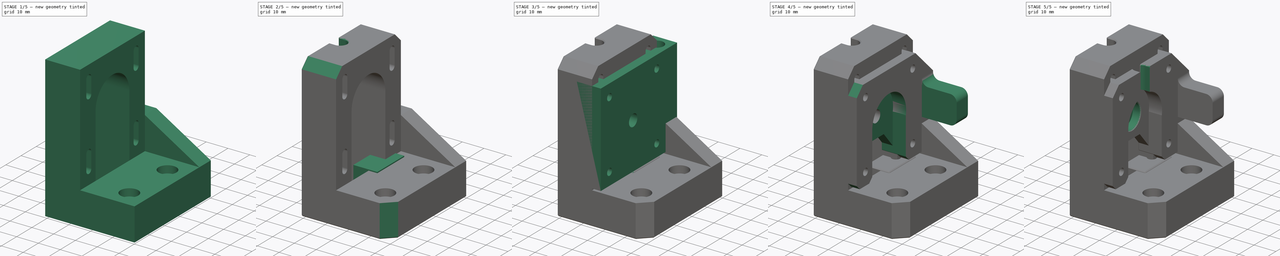
[diagram: build sequence overview — one tinted view per stage of 5, left to right]
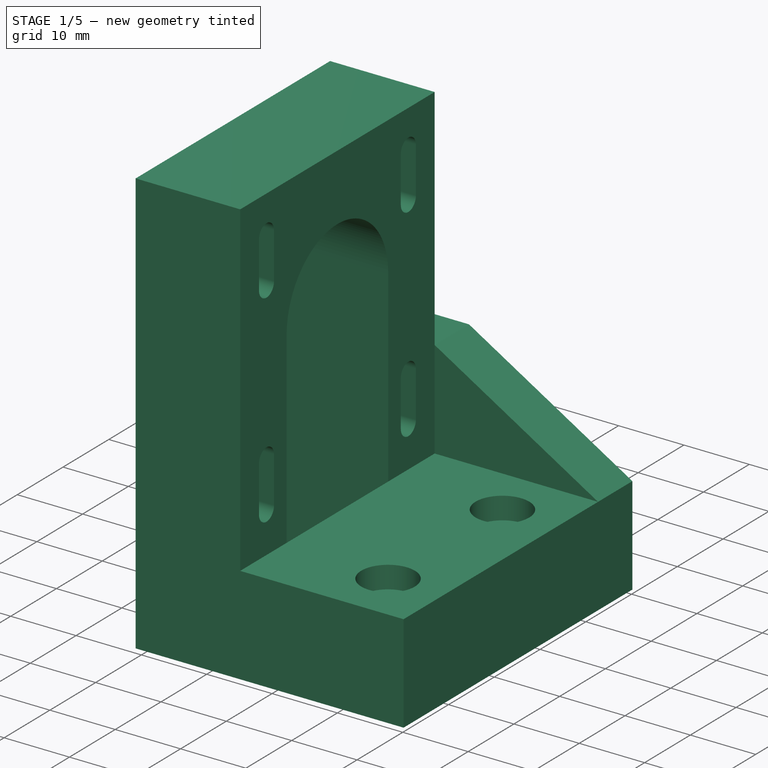
[diagram: stage 1 of 5 — iso view after this stage's code; geometry added in this stage tinted green]
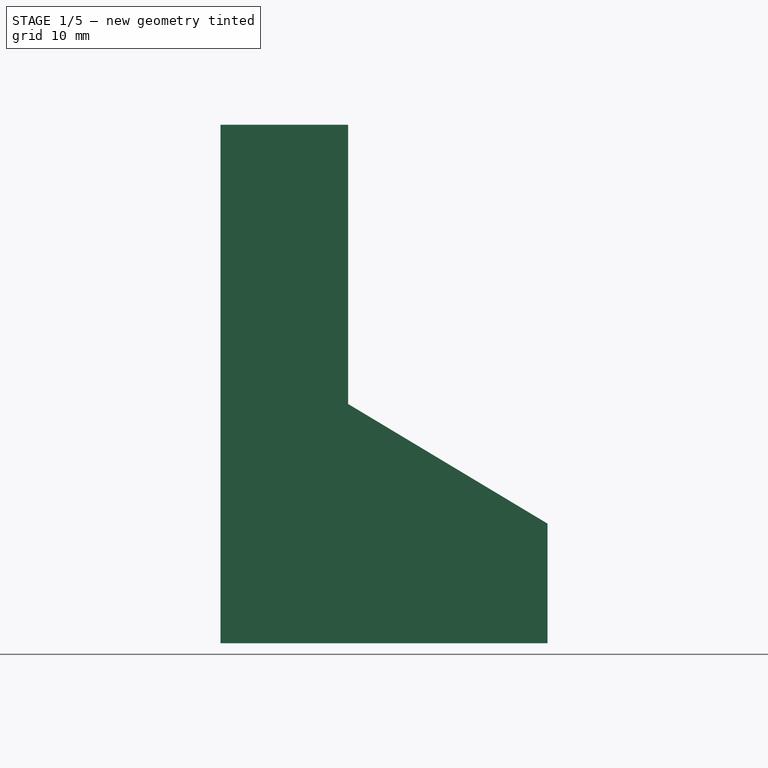
[diagram: stage 1 of 5 — front view after this stage's code; geometry added in this stage tinted green]
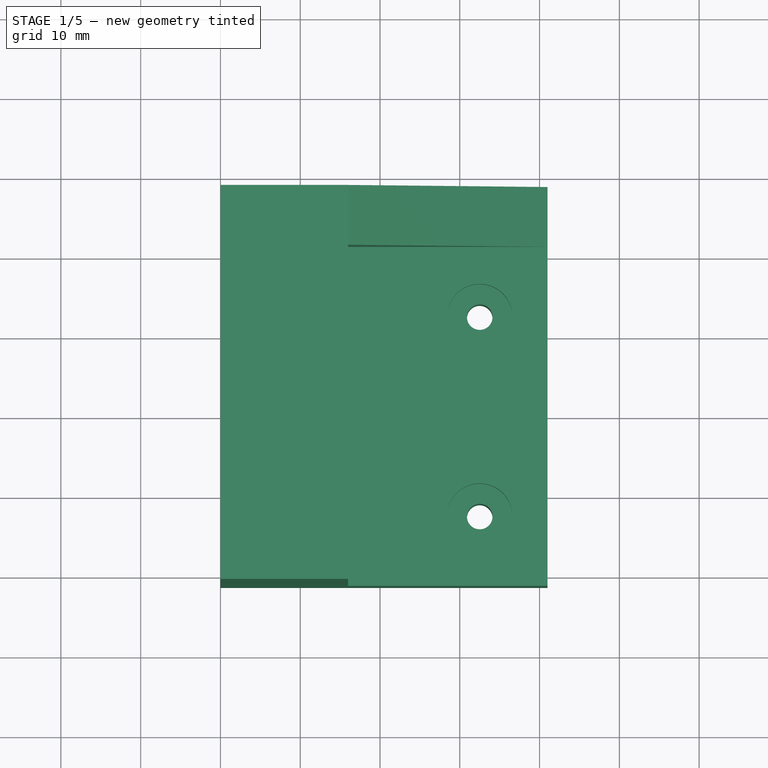
[diagram: stage 1 of 5 — top view after this stage's code; geometry added in this stage tinted green]
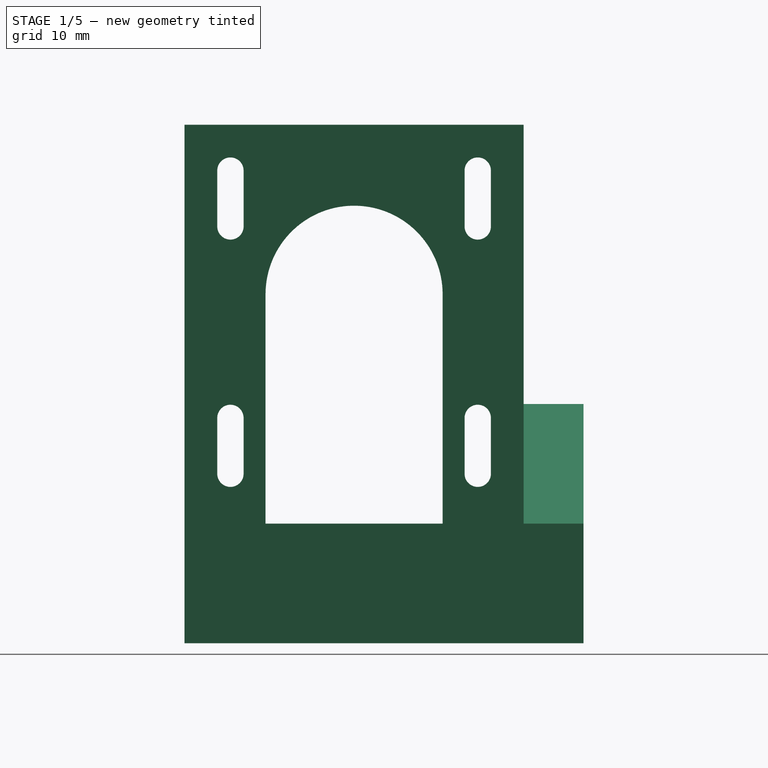
[diagram: stage 1 of 5 — right view after this stage's code; geometry added in this stage tinted green]
FCSTD DOCUMENT  (FreeCAD 0.19R24366 (Git))
Label: y-motor-mount
License: All rights reserved
LicenseURL: http://en.wikipedia.org/wiki/All_rights_reserved
objects: Sketcher::SketchObject×23, PartDesign::Pocket×16, PartDesign::Chamfer×10, PartDesign::Pad×6, PartDesign::Body×3, PartDesign::Hole×1, PartDesign::Fillet×1, Part::Feature×1
note: 95 computed .brp shape members not serialized (recipe doc carries the construction recipe); baked Part::Feature solids carry a one-line shape summary decoded from their .brp

FEATURE [Sketcher::SketchObject] Sketch
  FullyConstrained = true
  MapMode = 5
  Support = -> [XY_Plane]
  sketch-geometry (4):
    g0: LineSegment StartX=-20 StartY=28.75 StartZ=0 EndX=-4 EndY=28.75 EndZ=0
    g1: LineSegment StartX=-4 StartY=28.75 StartZ=0 EndX=-4 EndY=-21.25 EndZ=0
    g2: LineSegment StartX=-4 StartY=-21.25 StartZ=0 EndX=-20 EndY=-21.25 EndZ=0
    g3: LineSegment StartX=-20 StartY=-21.25 StartZ=0 EndX=-20 EndY=28.75 EndZ=0
  constraints (12):
    c: Coincident(g0,g1)
    c: Coincident(g1,g2)
    c: Coincident(g2,g3)
    c: Coincident(g3,g0)
    c: Horizontal(g0)
    c: Horizontal(g2)
    c: Vertical(g1)
    c: Vertical(g3)
    c: DistanceY(g3,g3) = 50
    c: DistanceY(g2,g-1) = 21.25
    c: DistanceX(g0,g-1) = 20
    c: DistanceX(g0,g-1) = 4
FEATURE [PartDesign::Pad] Pad
  Direction = (1,1,1)
  Length = 65
  Length2 = 100
  Profile = -> Sketch
  Type = 0
FEATURE [Sketcher::SketchObject] Sketch001
  ExternalGeometry = -> [Pad]
  FullyConstrained = true
  MapMode = 5
  Placement = pos=(-20,0,0) rot=(0.57735,-0.57735,-0.57735;2.0944rad)
  Support = -> [Pad]
  sketch-geometry (20):
    g0: ArcOfCircle CenterX=0 CenterY=43.75 CenterZ=0 NormalX=0 NormalY=0 NormalZ=1 AngleXU=0 Radius=11.1 StartAngle=1e-16 EndAngle=3.14159
    g1: ArcOfCircle CenterX=2e-16 CenterY=36.75 CenterZ=0 NormalX=0 NormalY=0 NormalZ=1 AngleXU=0 Radius=11.1 StartAngle=3.14159 EndAngle=6.28319
    g2: LineSegment StartX=-11.1 StartY=43.75 StartZ=0 EndX=-11.1 EndY=36.75 EndZ=0
    g3: LineSegment StartX=11.1 StartY=43.75 StartZ=0 EndX=11.1 EndY=36.75 EndZ=0
    g4: ArcOfCircle CenterX=-15.5 CenterY=59.25 CenterZ=0 NormalX=0 NormalY=0 NormalZ=1 AngleXU=0 Radius=1.65 StartAngle=1.7e-15 EndAngle=3.14159
    g5: ArcOfCircle CenterX=-15.5 CenterY=52.25 CenterZ=0 NormalX=0 NormalY=0 NormalZ=1 AngleXU=0 Radius=1.65 StartAngle=3.14159 EndAngle=6.28319
    g6: LineSegment StartX=-17.15 StartY=59.25 StartZ=0 EndX=-17.15 EndY=52.25 EndZ=0
    g7: LineSegment StartX=-13.85 StartY=59.25 StartZ=0 EndX=-13.85 EndY=52.25 EndZ=0
    g8: ArcOfCircle CenterX=15.5 CenterY=59.25 CenterZ=0 NormalX=0 NormalY=0 NormalZ=1 AngleXU=0 Radius=1.65 StartAngle=1.8e-15 EndAngle=3.14159
    g9: ArcOfCircle CenterX=15.5 CenterY=52.25 CenterZ=0 NormalX=0 NormalY=0 NormalZ=1 AngleXU=0 Radius=1.65 StartAngle=3.14159 EndAngle=6.28319
    g10: LineSegment StartX=13.85 StartY=59.25 StartZ=0 EndX=13.85 EndY=52.25 EndZ=0
    g11: LineSegment StartX=17.15 StartY=59.25 StartZ=0 EndX=17.15 EndY=52.25 EndZ=0
    g12: ArcOfCircle CenterX=-15.5 CenterY=28.25 CenterZ=0 NormalX=0 NormalY=0 NormalZ=1 AngleXU=0 Radius=1.65 StartAngle=4e-16 EndAngle=3.14159
    g13: ArcOfCircle CenterX=-15.5 CenterY=21.25 CenterZ=0 NormalX=0 NormalY=0 NormalZ=1 AngleXU=0 Radius=1.65 StartAngle=3.14159 EndAngle=6.28319
    g14: LineSegment StartX=-17.15 StartY=28.25 StartZ=0 EndX=-17.15 EndY=21.25 EndZ=0
    g15: LineSegment StartX=-13.85 StartY=28.25 StartZ=0 EndX=-13.85 EndY=21.25 EndZ=0
    g16: ArcOfCircle CenterX=15.5 CenterY=28.25 CenterZ=0 NormalX=0 NormalY=0 NormalZ=1 AngleXU=0 Radius=1.65 StartAngle=1e-15 EndAngle=3.14159
    g17: ArcOfCircle CenterX=15.5 CenterY=21.25 CenterZ=0 NormalX=0 NormalY=0 NormalZ=1 AngleXU=0 Radius=1.65 StartAngle=3.14159 EndAngle=6.28319
    g18: LineSegment StartX=13.85 StartY=28.25 StartZ=0 EndX=13.85 EndY=21.25 EndZ=0
    g19: LineSegment StartX=17.15 StartY=28.25 StartZ=0 EndX=17.15 EndY=21.25 EndZ=0
  constraints (50):
    c: Tangent(g0,g3) = 1.5708
    c: Tangent(g0,g2) = -1.5708
    c: Tangent(g2,g1) = -1.5708
    c: Tangent(g3,g1) = 1.5708
    c: Vertical(g2)
    c: Equal(g0,g1)
    c: PointOnObject(g0,g-2)
    c: Tangent(g4,g7) = 1.5708
    c: Tangent(g4,g6) = -1.5708
    c: Tangent(g6,g5) = -1.5708
    c: Tangent(g7,g5) = 1.5708
    c: Vertical(g6)
    c: Equal(g4,g5)
    c: Tangent(g8,g11) = 1.5708
    c: Tangent(g8,g10) = -1.5708
    c: Tangent(g10,g9) = -1.5708
    c: Tangent(g11,g9) = 1.5708
    c: Vertical(g10)
    c: Equal(g8,g9)
    c: Tangent(g12,g15) = 1.5708
    c: Tangent(g12,g14) = -1.5708
    c: Tangent(g14,g13) = -1.5708
    c: Tangent(g15,g13) = 1.5708
    c: Vertical(g14)
    c: Equal(g12,g13)
    c: Tangent(g16,g19) = 1.5708
    c: Tangent(g16,g18) = -1.5708
    c: Tangent(g18,g17) = -1.5708
    c: Tangent(g19,g17) = 1.5708
    c: Vertical(g18)
    c: Equal(g16,g17)
    c: Horizontal(g12,g16)
    c: Horizontal(g4,g8)
    c: Vertical(g5,g13)
    c: Vertical(g9,g17)
    c: Equal(g4,g12)
    c: Equal(g12,g16)
    c: Equal(g16,g8)
    c: DistanceY(g0,g-3) = 21.25
    c: Radius(g0) = 11.1
    c: DistanceX(g4,g0) = 15.5
    c: DistanceY(g0,g4) = 15.5
    c: Horizontal(g17,g13)
    c: Horizontal(g9,g5)
    c: DistanceY(g12,g0) = 15.5
    c: Radius(g4) = 1.65
    c: DistanceX(g0,g8) = 15.5
    c: DistanceY(g1,g0) = 7
    c: DistanceY(g5,g4) = 7
    c: DistanceY(g13,g12) = 7
FEATURE [PartDesign::Pocket] Pocket
  BaseFeature = -> Pad
  Length = 5
  Length2 = 100
  Profile = -> Sketch001
  Type = 1
FEATURE [Sketcher::SketchObject] Sketch002
  ExternalGeometry = -> [Pocket]
  FullyConstrained = true
  MapMode = 5
  Placement = pos=(-4,0,0) rot=(0.57735,0.57735,0.57735;2.0944rad)
  Support = -> [Pocket]
  sketch-geometry (4):
    g0: LineSegment StartX=-21.25 StartY=0 StartZ=0 EndX=28.75 EndY=0 EndZ=0
    g1: LineSegment StartX=28.75 StartY=0 StartZ=0 EndX=28.75 EndY=15 EndZ=0
    g2: LineSegment StartX=28.75 StartY=15 StartZ=0 EndX=-21.25 EndY=15 EndZ=0
    g3: LineSegment StartX=-21.25 StartY=15 StartZ=0 EndX=-21.25 EndY=0 EndZ=0
  constraints (11):
    c: Coincident(g0,g1)
    c: Coincident(g1,g2)
    c: Coincident(g2,g3)
    c: Coincident(g3,g0)
    c: Horizontal(g0)
    c: Horizontal(g2)
    c: Vertical(g1)
    c: Vertical(g3)
    c: Coincident(g0,g-3)
    c: Vertical(g1,g-3)
    c: DistanceY(g3,g3) = 15
FEATURE [PartDesign::Pad] Pad001
  BaseFeature = -> Pocket
  Direction = (1,1,1)
  Length = 25
  Length2 = 100
  Profile = -> Sketch002
  Type = 0
FEATURE [Sketcher::SketchObject] Sketch011
  ExternalGeometry = -> [Pad001]
  FullyConstrained = true
  MapMode = 5
  Placement = pos=(-20,0,0) rot=(0.57735,-0.57735,-0.57735;2.0944rad)
  Support = -> [Pad001]
  sketch-geometry (4):
    g0: LineSegment StartX=-11.1 StartY=36.75 StartZ=0 EndX=-11.1 EndY=0 EndZ=0
    g1: LineSegment StartX=-11.1 StartY=0 StartZ=0 EndX=11.1 EndY=0 EndZ=0
    g2: LineSegment StartX=11.1 StartY=0 StartZ=0 EndX=11.1 EndY=36.75 EndZ=0
    g3: ArcOfCircle CenterX=2e-16 CenterY=36.75 CenterZ=0 NormalX=0 NormalY=0 NormalZ=1 AngleXU=0 Radius=11.1 StartAngle=3.14159 EndAngle=6.28319
  constraints (11):
    c: PointOnObject(g0,g-1)
    c: Vertical(g0)
    c: Coincident(g0,g1)
    c: PointOnObject(g1,g-1)
    c: Coincident(g1,g2)
    c: Vertical(g2)
    c: Coincident(g2,g-3)
    c: Coincident(g0,g-3)
    c: Coincident(g3,g-3)
    c: Coincident(g3,g0)
    c: Coincident(g3,g2)
FEATURE [PartDesign::Pocket] Pocket001
  BaseFeature = -> Pad001
  Length = 16
  Length2 = 100
  Profile = -> Sketch011
  Type = 0
FEATURE [Sketcher::SketchObject] Sketch012
  FullyConstrained = false
  MapMode = 5
  Placement = pos=(0,0,15) rot=(0,0,1;0rad)
  Support = -> [Pocket001]
  sketch-geometry (2):
    g0: Circle CenterX=12.5 CenterY=12.5 CenterZ=0 NormalX=0 NormalY=0 NormalZ=1 AngleXU=0 Radius=1.87296
    g1: Circle CenterX=12.5 CenterY=-12.5 CenterZ=0 NormalX=0 NormalY=0 NormalZ=1 AngleXU=0 Radius=1.87296
  constraints (5):
    c: Vertical(g1,g0)
    c: DistanceY(g-1,g0) = 12.5
    c: DistanceY(g1,g-1) = 12.5
    c: DistanceX(g-1,g0) = 12.5
    c: Equal(g0,g1)
FEATURE [PartDesign::Hole] Hole
  BaseFeature = -> Pocket001
  Depth = 25
  DepthType = 0
  Diameter = 3.2
  DrillForDepth = false
  DrillPoint = 1
  DrillPointAngle = 118
  HoleCutCountersinkAngle = 90
  HoleCutCustomValues = false
  HoleCutDepth = 3.4
  HoleCutDiameter = 8.2
  HoleCutType = 1
  ModelActualThread = false
  Profile = -> Sketch012
  Tapered = false
  TaperedAngle = 90
  ThreadAngle = 0
  ThreadClass = 0
  ThreadCutOffInner = 0
  ThreadCutOffOuter = 0
  ThreadDirection = 0
  ThreadFit = 1
  ThreadPitch = 0
  ThreadSize = 9
  ThreadType = 1
  Threaded = false
FEATURE [Sketcher::SketchObject] Sketch013
  ExternalGeometry = -> [Hole]
  FullyConstrained = true
  MapMode = 5
  Placement = pos=(-4,0,0) rot=(0.57735,0.57735,0.57735;2.0944rad)
  Support = -> [Hole]
  sketch-geometry (4):
    g0: LineSegment StartX=21.25 StartY=65 StartZ=0 EndX=28.75 EndY=65 EndZ=0
    g1: LineSegment StartX=28.75 StartY=65 StartZ=0 EndX=28.75 EndY=15 EndZ=0
    g2: LineSegment StartX=28.75 StartY=15 StartZ=0 EndX=21.25 EndY=15 EndZ=0
    g3: LineSegment StartX=21.25 StartY=15 StartZ=0 EndX=21.25 EndY=65 EndZ=0
  constraints (11):
    c: Coincident(g0,g1)
    c: Coincident(g1,g2)
    c: Coincident(g2,g3)
    c: Coincident(g3,g0)
    c: Horizontal(g0)
    c: Horizontal(g2)
    c: Vertical(g1)
    c: Vertical(g3)
    c: PointOnObject(g0,g-3)
    c: Coincident(g1,g-5)
    c: DistanceX(g-1,g0) = 21.25
FEATURE [PartDesign::Pocket] Pocket002
  BaseFeature = -> Hole
  Length = 5
  Length2 = 100
  Profile = -> Sketch013
  Type = 1
FEATURE [Sketcher::SketchObject] Sketch014
  ExternalGeometry = -> [Pocket002]
  FullyConstrained = true
  MapMode = 5
  Placement = pos=(0,28.75,0) rot=(0,0.707107,0.707107;3.14159rad)
  Support = -> [Pocket002]
  sketch-geometry (4):
    g0: LineSegment StartX=-21 StartY=15 StartZ=0 EndX=4 EndY=30 EndZ=0
    g1: LineSegment StartX=4 StartY=30 StartZ=0 EndX=20 EndY=30 EndZ=0
    g2: LineSegment StartX=20 StartY=15 StartZ=0 EndX=20 EndY=30 EndZ=0
    g3: LineSegment StartX=20 StartY=15 StartZ=0 EndX=-21 EndY=15 EndZ=0
  constraints (10):
    c: Coincident(g-4,g0)
    c: PointOnObject(g0,g-6)
    c: Coincident(g1,g0)
    c: PointOnObject(g1,g-7)
    c: Horizontal(g1)
    c: Coincident(g2,g-7)
    c: Coincident(g2,g1)
    c: Coincident(g3,g2)
    c: Coincident(g3,g0)
    c: DistanceY(g2,g2) = 15
FEATURE [PartDesign::Pad] Pad006
  BaseFeature = -> Pocket002
  Direction = (1,1,1)
  Length = 10
  Length2 = 100
  Profile = -> Sketch014
  Refine = true
  Reversed = true
  Type = 3
  UpToFace = -> Pocket002 [Face10]
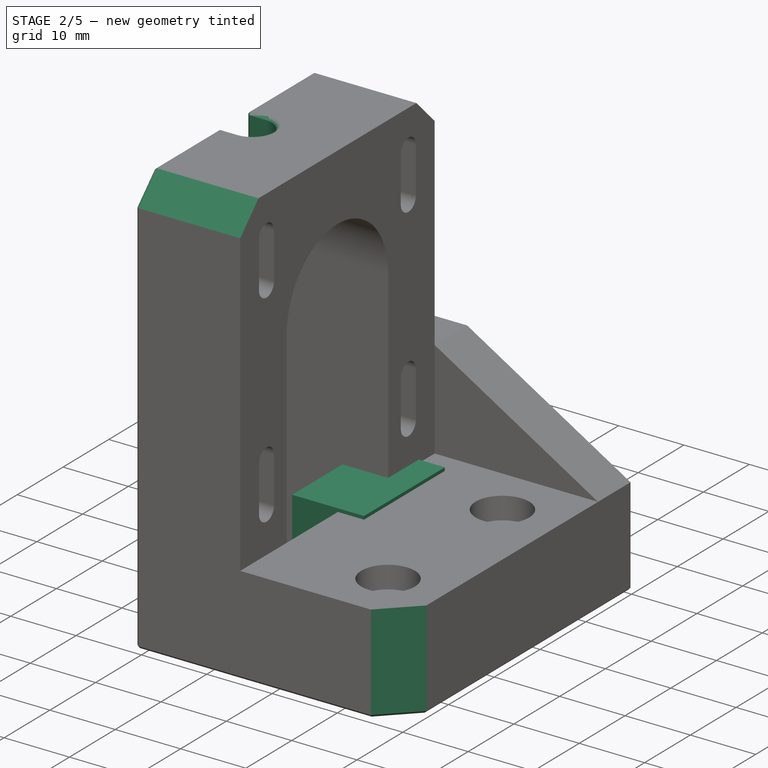
[diagram: stage 2 of 5 — iso view after this stage's code; geometry added in this stage tinted green]
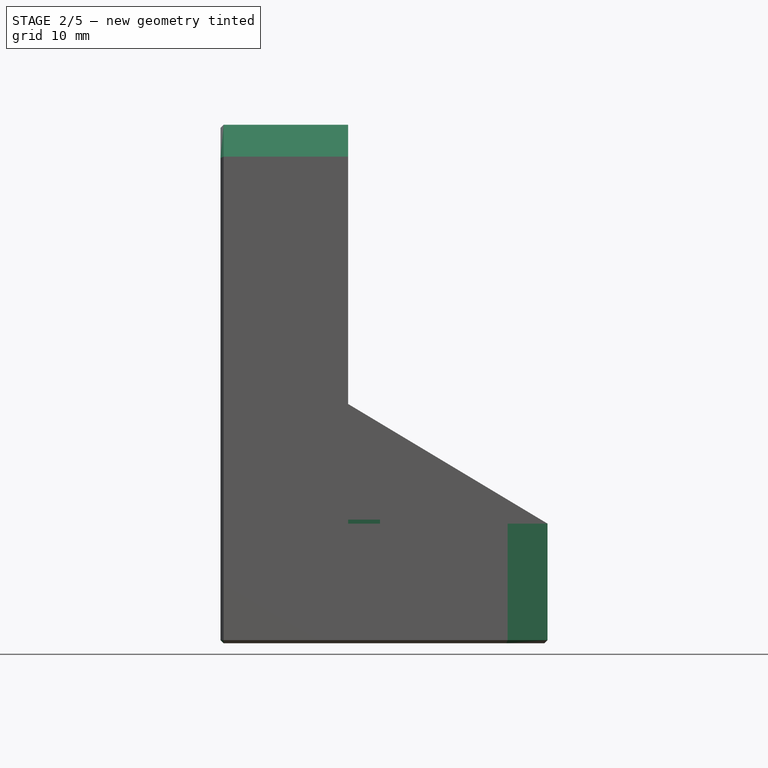
[diagram: stage 2 of 5 — front view after this stage's code; geometry added in this stage tinted green]
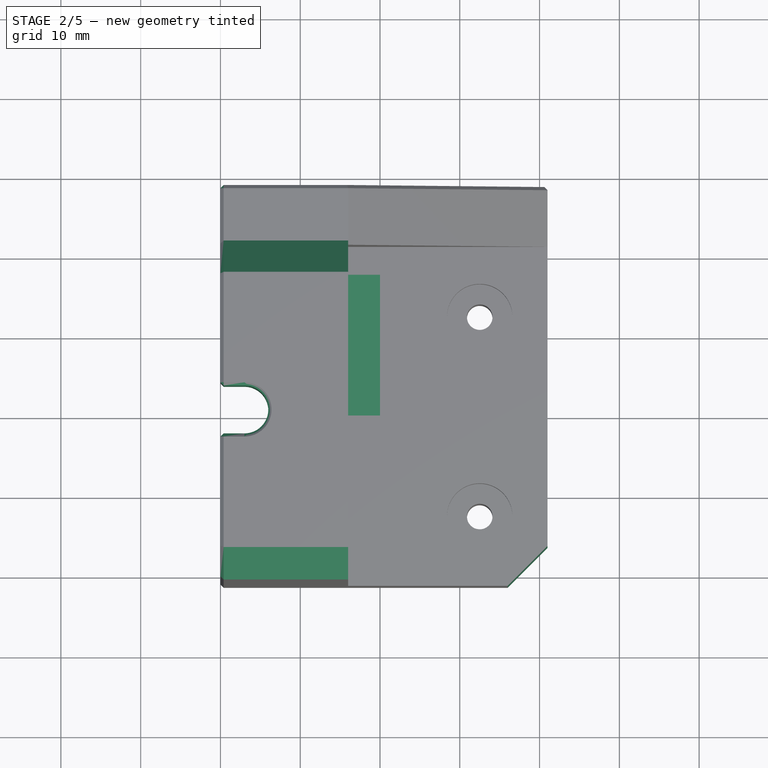
[diagram: stage 2 of 5 — top view after this stage's code; geometry added in this stage tinted green]
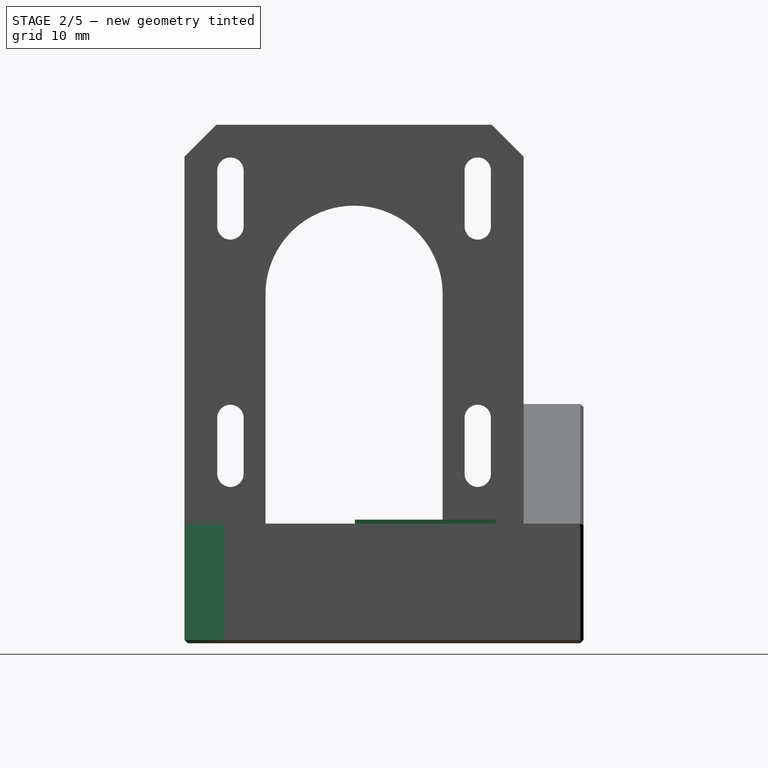
[diagram: stage 2 of 5 — right view after this stage's code; geometry added in this stage tinted green]
FEATURE [Sketcher::SketchObject] Sketch034
  FullyConstrained = true
  MapMode = 5
  Placement = pos=(0,0,0) rot=(0.57735,0.57735,0.57735;2.0944rad)
  Support = -> [YZ_Plane003]
  sketch-geometry (4):
    g0: LineSegment StartX=0.1 StartY=0 StartZ=0 EndX=17.75 EndY=0 EndZ=0
    g1: LineSegment StartX=17.75 StartY=0 StartZ=0 EndX=17.75 EndY=15.5 EndZ=0
    g2: LineSegment StartX=17.75 StartY=15.5 StartZ=0 EndX=0.1 EndY=15.5 EndZ=0
    g3: LineSegment StartX=0.1 StartY=15.5 StartZ=0 EndX=0.1 EndY=0 EndZ=0
  constraints (12):
    c: Coincident(g0,g1)
    c: Coincident(g1,g2)
    c: Coincident(g2,g3)
    c: Coincident(g3,g0)
    c: Horizontal(g0)
    c: Horizontal(g2)
    c: Vertical(g1)
    c: Vertical(g3)
    c: PointOnObject(g0,g-1)
    c: DistanceX(g2,g2) = 17.65
    c: DistanceY(g1,g1) = 15.5
    c: DistanceX(g-1,g0) = 0.1
FEATURE [PartDesign::Pad] Pad010
  Direction = (1,1,1)
  Length = 11
  Length2 = 100
  Placement = pos=(0,0,0) rot=(0.57735,0.57735,0.57735;2.0944rad)
  Profile = -> Sketch034
  Reversed = true
  Type = 0
FEATURE [PartDesign::Body] Body005020  label="tesioner-block"
  Group = -> [Sketch034,Pad010,Sketch035,Pocket018,Sketch036,Pocket019,Chamfer003015002]
  Origin = -> Origin003
  Placement = pos=(-20,11,0) rot=(0,0,1;0rad)
  Tip = -> Chamfer003015002
FEATURE [Part::Feature] Pocket022001
  shape: bbox 41 x 50 x 69 mm, 113 faces (baked)
FEATURE [Sketcher::SketchObject] Sketch039
  FullyConstrained = true
  MapMode = 5
  Placement = pos=(-20,0,0) rot=(-0.57735,0.57735,0.57735;4.18879rad)
  Support = -> [Pad006]
  sketch-geometry (2):
    g0: Circle CenterX=-23.25 CenterY=10 CenterZ=0 NormalX=0 NormalY=0 NormalZ=1 AngleXU=0 Radius=1.55
    g1: Circle CenterX=-16.25 CenterY=10 CenterZ=0 NormalX=0 NormalY=0 NormalZ=1 AngleXU=0 Radius=1.55
  constraints (6):
    c: Horizontal(g0,g1)
    c: DistanceX(g0,g-1) = 23.25
    c: DistanceX(g0,g1) = 7
    c: DistanceY(g-1,g0) = 10
    c: Equal(g0,g1)
    c: Radius(g1) = 1.55
FEATURE [PartDesign::Pocket] Pocket022002
  BaseFeature = -> Pad006
  Length = 25
  Length2 = 100
  Profile = -> Sketch039
  Type = 0
FEATURE [Sketcher::SketchObject] Sketch040
  ExternalGeometry = -> [Pocket022002]
  FullyConstrained = true
  MapMode = 5
  Placement = pos=(-20,0,0) rot=(-0.57735,0.57735,0.57735;4.18879rad)
  Support = -> [Pocket022002]
  sketch-geometry (2):
    g0: Circle CenterX=-23.25 CenterY=10 CenterZ=0 NormalX=0 NormalY=0 NormalZ=1 AngleXU=0 Radius=2
    g1: Circle CenterX=-16.25 CenterY=10 CenterZ=0 NormalX=0 NormalY=0 NormalZ=1 AngleXU=0 Radius=2
  constraints (4):
    c: Coincident(g0,g-3)
    c: Coincident(g1,g-4)
    c: Equal(g0,g1)
    c: Radius(g1) = 2
FEATURE [PartDesign::Pocket] Pocket022003
  BaseFeature = -> Pocket022002
  Length = 6
  Length2 = 100
  Profile = -> Sketch040
  Type = 0
FEATURE [Sketcher::SketchObject] Sketch041
  ExternalGeometry = -> [Pocket022003]
  FullyConstrained = true
  MapMode = 5
  Placement = pos=(0,0,65) rot=(0,0,1;0rad)
  Support = -> [Pocket022003]
  sketch-geometry (4):
    g0: ArcOfCircle CenterX=-17 CenterY=0 CenterZ=0 NormalX=0 NormalY=0 NormalZ=1 AngleXU=0 Radius=3 StartAngle=4.71239 EndAngle=7.85398
    g1: LineSegment StartX=-17 StartY=3 StartZ=0 EndX=-20 EndY=3 EndZ=0
    g2: LineSegment StartX=-20 StartY=3 StartZ=0 EndX=-20 EndY=-3 EndZ=0
    g3: LineSegment StartX=-20 StartY=-3 StartZ=0 EndX=-17 EndY=-3 EndZ=0
  constraints (12):
    c: PointOnObject(g0,g-1)
    c: Vertical(g0,g0)
    c: Vertical(g0,g0)
    c: Tangent(g0,g1) = -1.5708
    c: Coincident(g1,g2)
    c: PointOnObject(g2,g-3)
    c: Vertical(g2)
    c: Coincident(g2,g3)
    c: Coincident(g3,g0)
    c: Horizontal(g3)
    c: Radius(g0) = 3
    c: DistanceX(g2,g0) = 3
FEATURE [PartDesign::Pocket] Pocket022004
  BaseFeature = -> Pocket022003
  Length = 5
  Length2 = 100
  Profile = -> Sketch041
  Type = 1
FEATURE [PartDesign::Chamfer] Chamfer
  Angle = 45
  Base = -> Pocket022004 [Edge79,Edge80]
  BaseFeature = -> Pocket022004
  ChamferType = 0
  FlipDirection = false
  Size = 4
  Size2 = 1
  SupportTransform = false
FEATURE [PartDesign::Chamfer] Chamfer003015003
  Angle = 45
  Base = -> Chamfer [Edge29]
  BaseFeature = -> Chamfer
  ChamferType = 0
  FlipDirection = false
  Size = 5
  Size2 = 1
  SupportTransform = false
FEATURE [PartDesign::Chamfer] Chamfer003015004
  Angle = 45
  Base = -> Chamfer003015003 [Face36,Face7,Edge75,Edge77,Edge76,Edge81,Edge82,Edge83,Edge84,Edge46,Edge47,Edge45,Edge115,Edge116,Edge64,Edge42,Edge43,Edge44,Edge4,Edge16,Edge41,Edge132,Edge133]
  BaseFeature = -> Chamfer003015003
  ChamferType = 0
  FlipDirection = false
  Size = 0.4
  Size2 = 1
  SupportTransform = false
FEATURE [PartDesign::Body] Body  label="motor-mounter"
  Group = -> [Sketch,Pad,Sketch001,Pocket,Sketch002,Pad001,Sketch011,Pocket001,Sketch012,Hole,Sketch013,Pocket002,Sketch014,Pad006,Sketch039,Pocket022002,Sketch040,Pocket022003,Sketch041,Pocket022004,Chamfer,Chamfer003015003,Chamfer003015004]
  Origin = -> Origin
  Tip = -> Chamfer003015004
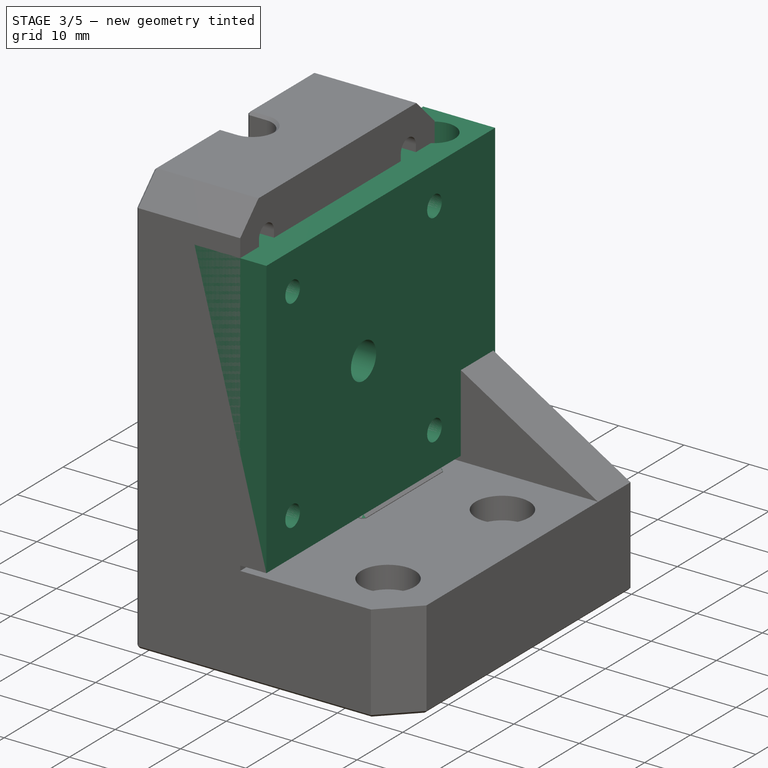
[diagram: stage 3 of 5 — iso view after this stage's code; geometry added in this stage tinted green]
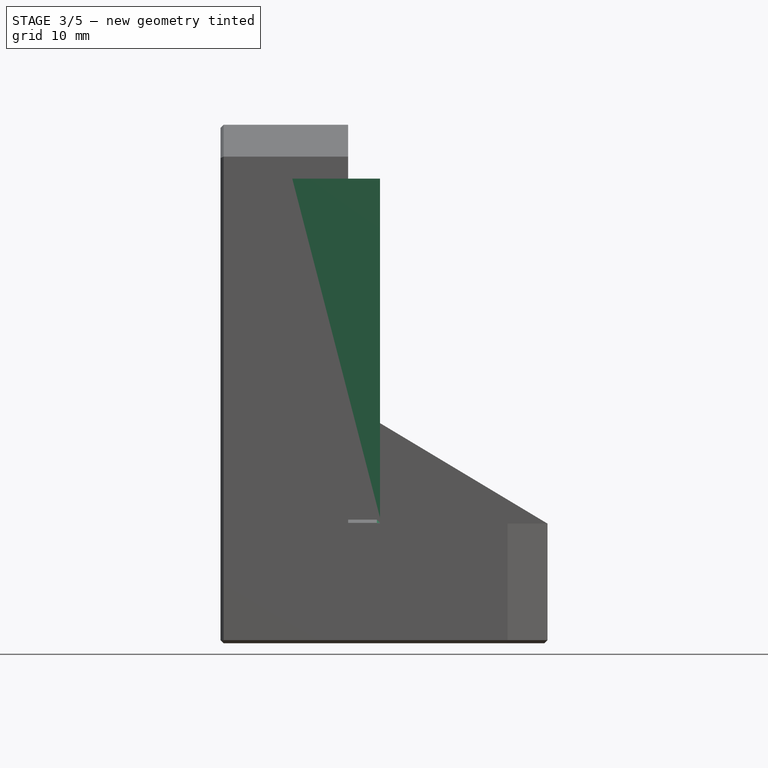
[diagram: stage 3 of 5 — front view after this stage's code; geometry added in this stage tinted green]
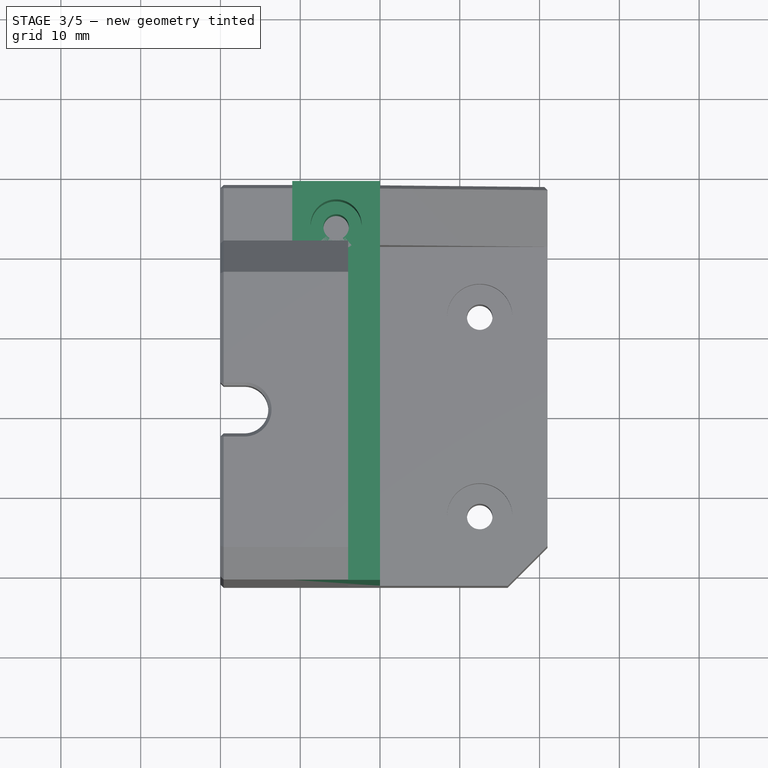
[diagram: stage 3 of 5 — top view after this stage's code; geometry added in this stage tinted green]
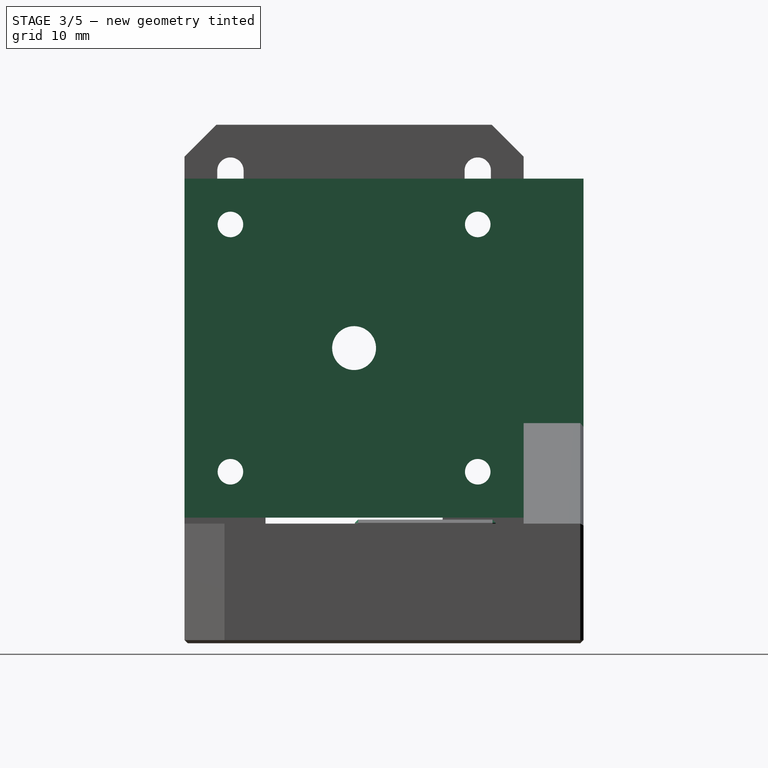
[diagram: stage 3 of 5 — right view after this stage's code; geometry added in this stage tinted green]
FEATURE [Sketcher::SketchObject] Sketch018
  FullyConstrained = true
  MapMode = 5
  Placement = pos=(0,0,0) rot=(0.57735,0.57735,0.57735;2.0944rad)
  Support = -> [YZ_Plane002]
  sketch-geometry (9):
    g0: Circle CenterX=0 CenterY=37 CenterZ=0 NormalX=0 NormalY=0 NormalZ=1 AngleXU=0 Radius=2.75
    g1: Circle CenterX=-15.5 CenterY=52.5 CenterZ=0 NormalX=0 NormalY=0 NormalZ=1 AngleXU=0 Radius=1.6
    g2: Circle CenterX=-15.5 CenterY=21.5 CenterZ=0 NormalX=0 NormalY=0 NormalZ=1 AngleXU=0 Radius=1.6
    g3: Circle CenterX=15.5 CenterY=21.5 CenterZ=0 NormalX=0 NormalY=0 NormalZ=1 AngleXU=0 Radius=1.6
    g4: Circle CenterX=15.5 CenterY=52.5 CenterZ=0 NormalX=0 NormalY=0 NormalZ=1 AngleXU=0 Radius=1.6
    g5: LineSegment StartX=-21.25 StartY=58.25 StartZ=0 EndX=-21.25 EndY=15.75 EndZ=0
    g6: LineSegment StartX=-21.25 StartY=15.75 StartZ=0 EndX=28.75 EndY=15.75 EndZ=0
    g7: LineSegment StartX=28.75 StartY=15.75 StartZ=0 EndX=28.75 EndY=58.25 EndZ=0
    g8: LineSegment StartX=-21.25 StartY=58.25 StartZ=0 EndX=28.75 EndY=58.25 EndZ=0
  constraints (27):
    c: PointOnObject(g0,g-2)
    c: Horizontal(g1,g4)
    c: Horizontal(g2,g3)
    c: Vertical(g2,g1)
    c: Vertical(g3,g4)
    c: Equal(g1,g2)
    c: Equal(g2,g3)
    c: Equal(g3,g4)
    c: Radius(g1) = 1.6
    c: DistanceX(g1,g0) = 15.5
    c: DistanceX(g0,g4) = 15.5
    c: DistanceY(g0,g4) = 15.5
    c: DistanceY(g3,g0) = 15.5
    c: DistanceY(g-1,g0) = 37
    c: Radius(g0) = 2.75
    c: Vertical(g5)
    c: Coincident(g5,g6)
    c: Horizontal(g6)
    c: Vertical(g7)
    c: DistanceY(g0,g5) = 21.25
    c: DistanceY(g5,g0) = 21.25
    c: DistanceX(g5,g0) = 21.25
    c: DistanceX(g0,g7) = 28.75
    c: Coincident(g7,g6)
    c: Coincident(g5,g8)
    c: Horizontal(g8)
    c: Coincident(g8,g7)
FEATURE [PartDesign::Pad] Pad008
  Direction = (1,1,1)
  Length = 11
  Length2 = 100
  Placement = pos=(0,0,0) rot=(0.57735,0.57735,0.57735;2.0944rad)
  Profile = -> Sketch018
  Reversed = true
  Type = 0
FEATURE [Sketcher::SketchObject] Sketch027
  ExternalGeometry = -> [Pad008]
  FullyConstrained = true
  MapMode = 5
  Placement = pos=(-2.26e-14,3.23e-14,58.25) rot=(0,0,-1;1.5708rad)
  Support = -> [Pad008]
  sketch-geometry (1):
    g0: Circle CenterX=-23.25 CenterY=-5.5 CenterZ=0 NormalX=0 NormalY=0 NormalZ=1 AngleXU=0 Radius=3.2
  constraints (3):
    c: DistanceY(g-4,g0) = 5.5
    c: DistanceX(g-3,g0) = 5.5
    c: Radius(g0) = 3.2
FEATURE [PartDesign::Pocket] Pocket012
  BaseFeature = -> Pad008
  Length = 15
  Length2 = 100
  Placement = pos=(0,0,0) rot=(0.57735,0.57735,0.57735;2.0944rad)
  Profile = -> Sketch027
  Type = 0
FEATURE [Sketcher::SketchObject] Sketch028
  ExternalGeometry = -> [Pocket012]
  FullyConstrained = true
  MapMode = 5
  Placement = pos=(-1.44e-14,4.8e-15,43.25) rot=(0,0,-1;1.5708rad)
  Support = -> [Pocket012]
  sketch-geometry (1):
    g0: Circle CenterX=-23.25 CenterY=-5.5 CenterZ=0 NormalX=0 NormalY=0 NormalZ=1 AngleXU=0 Radius=1.6
  constraints (2):
    c: Coincident(g0,g-3)
    c: Radius(g0) = 1.6
FEATURE [PartDesign::Pocket] Pocket013
  BaseFeature = -> Pocket012
  Length = 5
  Length2 = 100
  Placement = pos=(0,0,0) rot=(0.57735,0.57735,0.57735;2.0944rad)
  Profile = -> Sketch028
  Type = 1
FEATURE [Sketcher::SketchObject] Sketch035
  FullyConstrained = true
  MapMode = 5
  Placement = pos=(-11,4.9e-15,-3.7e-15) rot=(0.57735,0.57735,-0.57735;4.18879rad)
  Support = -> [Pad010]
  sketch-geometry (2):
    g0: Circle CenterX=5.25 CenterY=-10 CenterZ=0 NormalX=0 NormalY=0 NormalZ=1 AngleXU=0 Radius=1.6
    g1: Circle CenterX=12.25 CenterY=-10 CenterZ=0 NormalX=0 NormalY=0 NormalZ=1 AngleXU=0 Radius=1.6
  constraints (6):
    c: Horizontal(g1,g0)
    c: Equal(g0,g1)
    c: Radius(g0) = 1.6
    c: DistanceY(g0,g-1) = 10
    c: DistanceX(g-1,g0) = 5.25
    c: DistanceX(g0,g1) = 7
FEATURE [PartDesign::Pocket] Pocket018
  BaseFeature = -> Pad010
  Length = 5
  Length2 = 100
  Placement = pos=(0,0,0) rot=(0.57735,0.57735,0.57735;2.0944rad)
  Profile = -> Sketch035
  Type = 1
FEATURE [Sketcher::SketchObject] Sketch036
  ExternalGeometry = -> [Pocket018]
  FullyConstrained = true
  MapMode = 5
  Placement = pos=(-1.12e-14,1.03e-14,15.5) rot=(0,0,-1;1.5708rad)
  Support = -> [Pocket018]
  sketch-geometry (3):
    g0: Circle CenterX=-12.25 CenterY=-5.5 CenterZ=0 NormalX=0 NormalY=0 NormalZ=1 AngleXU=0 Radius=1.6
    g1: LineSegment StartX=-12.25 StartY=-5.5 StartZ=0 EndX=-13.85 EndY=-11 EndZ=0
    g2: LineSegment StartX=-12.25 StartY=-5.5 StartZ=0 EndX=-10.65 EndY=-11 EndZ=0
  constraints (7):
    c: DistanceY(g0,g-1) = 5.5
    c: Coincident(g1,g0)
    c: Coincident(g1,g-3)
    c: Coincident(g2,g0)
    c: Coincident(g2,g-3)
    c: Equal(g1,g2)
    c: Radius(g0) = 1.6
FEATURE [PartDesign::Pocket] Pocket019
  BaseFeature = -> Pocket018
  Length = 5
  Length2 = 100
  Placement = pos=(0,0,0) rot=(0.57735,0.57735,0.57735;2.0944rad)
  Profile = -> Sketch036
  Type = 0
FEATURE [PartDesign::Body] Body005019  label="cap"
  Group = -> [Sketch018,Pad008,Sketch027,Pocket012,Sketch028,Pocket013,Sketch029,Pad009,Sketch030,Pocket014,Fillet,Sketch031,Pocket015,Sketch032,Pocket016,Chamfer003011,Chamfer003012,Sketch033,Pocket017,Chamfer003013,Chamfer003014,Sketch037,Pocket020,Chamfer003016,Sketch038,Pocket021,Chamfer003017]
  Origin = -> Origin002
  Placement = pos=(-20,0,0) rot=(0,0,1;0rad)
  Tip = -> Chamfer003017
FEATURE [PartDesign::Chamfer] Chamfer003015002
  Angle = 45
  Base = -> Pocket019 [Face5,Face3,Face1,Face6,Face2,Face4]
  BaseFeature = -> Pocket019
  ChamferType = 0
  FlipDirection = false
  Placement = pos=(0,0,0) rot=(0.57735,0.57735,0.57735;2.0944rad)
  Size = 0.4
  Size2 = 1
  SupportTransform = false
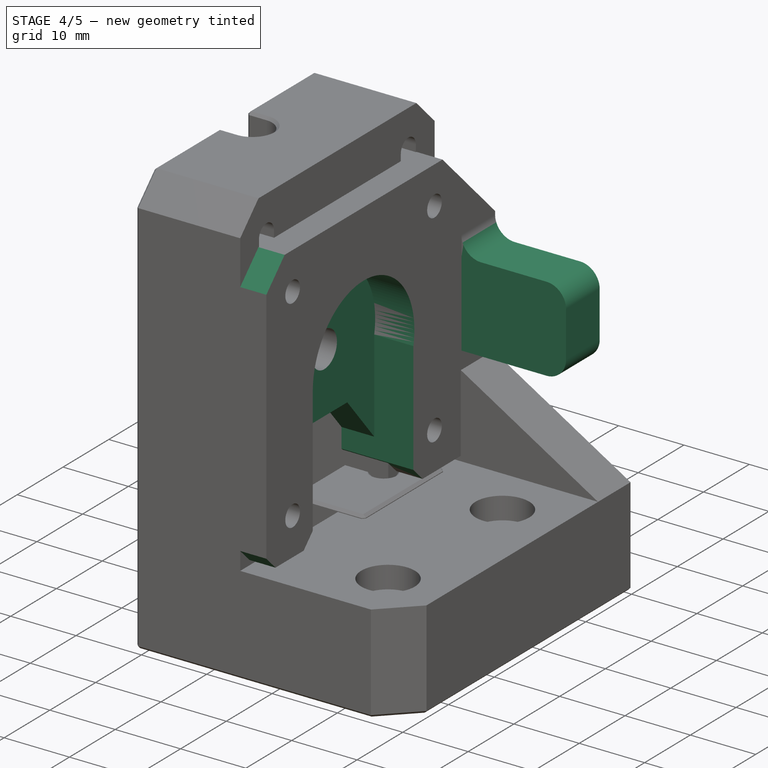
[diagram: stage 4 of 5 — iso view after this stage's code; geometry added in this stage tinted green]
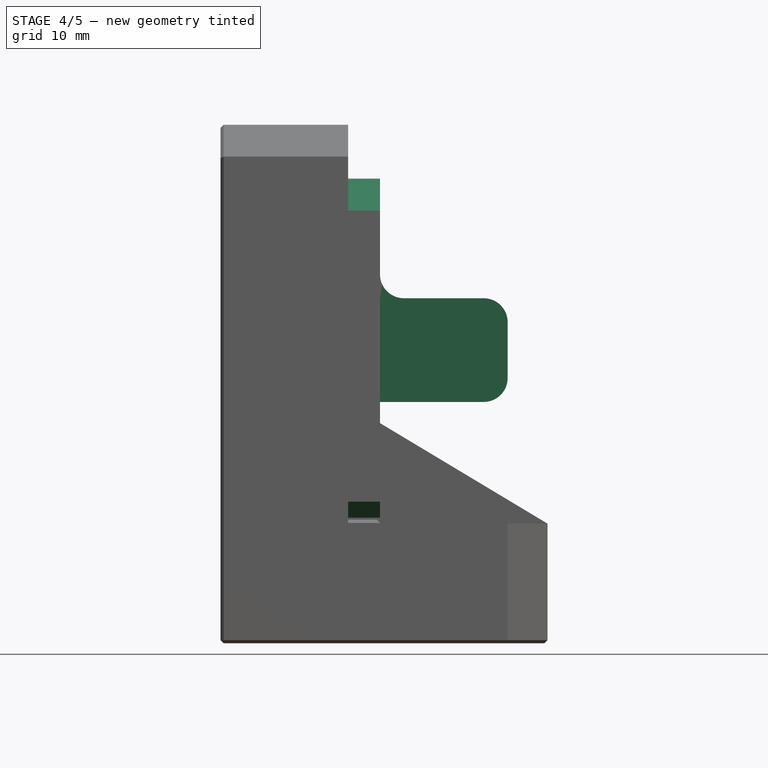
[diagram: stage 4 of 5 — front view after this stage's code; geometry added in this stage tinted green]
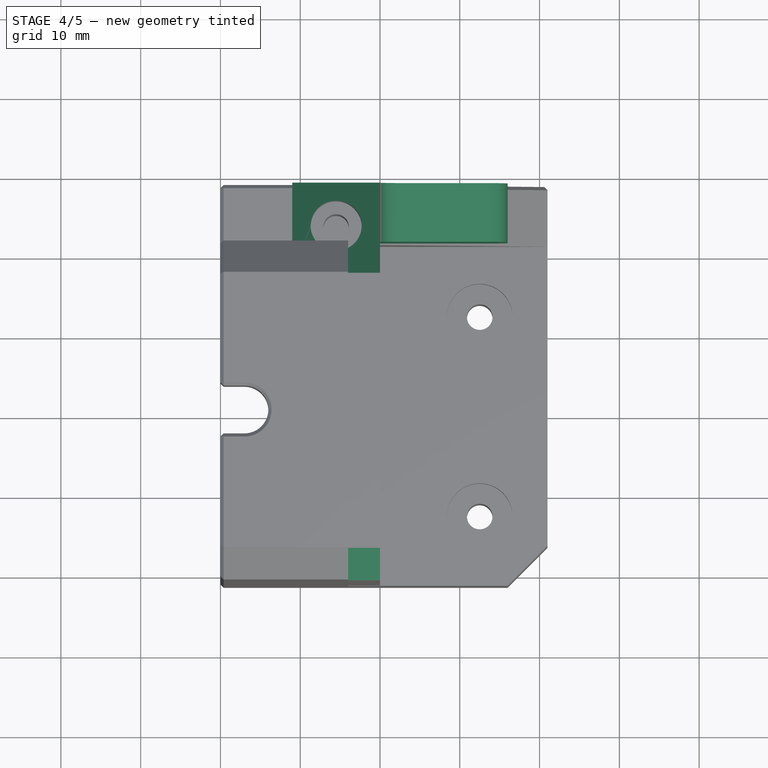
[diagram: stage 4 of 5 — top view after this stage's code; geometry added in this stage tinted green]
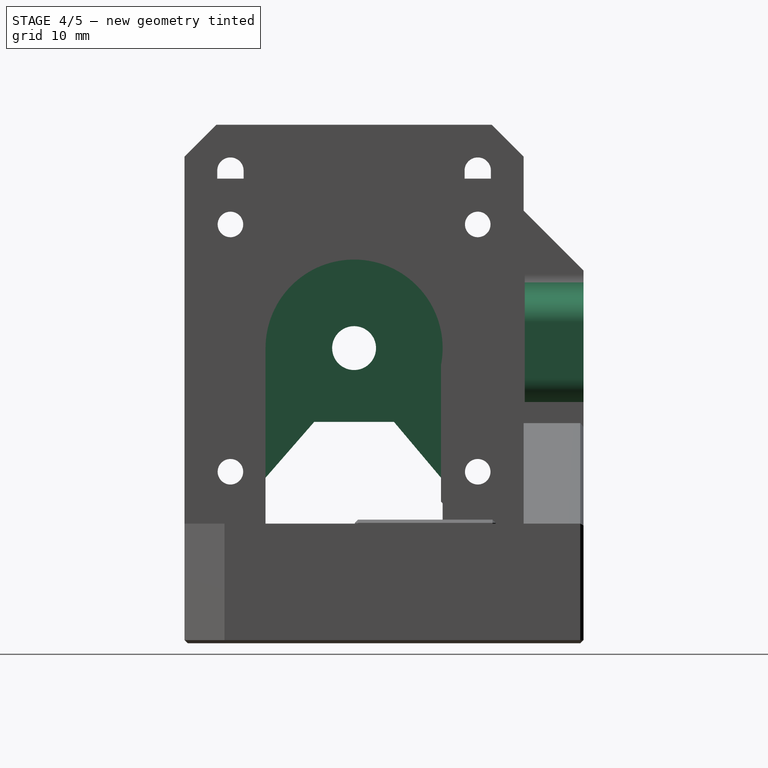
[diagram: stage 4 of 5 — right view after this stage's code; geometry added in this stage tinted green]
FEATURE [Sketcher::SketchObject] Sketch029
  ExternalGeometry = -> [Pocket013]
  FullyConstrained = true
  MapMode = 5
  Placement = pos=(-2.71e-14,0,0) rot=(0.57735,0.57735,0.57735;2.0944rad)
  Support = -> [Pocket013]
  sketch-geometry (4):
    g0: LineSegment StartX=21.4 StartY=43.25 StartZ=0 EndX=28.75 EndY=43.25 EndZ=0
    g1: LineSegment StartX=28.75 StartY=43.25 StartZ=0 EndX=28.75 EndY=30.25 EndZ=0
    g2: LineSegment StartX=28.75 StartY=30.25 StartZ=0 EndX=21.4 EndY=30.25 EndZ=0
    g3: LineSegment StartX=21.4 StartY=30.25 StartZ=0 EndX=21.4 EndY=43.25 EndZ=0
  constraints (12):
    c: Coincident(g0,g1)
    c: Coincident(g1,g2)
    c: Coincident(g2,g3)
    c: Coincident(g3,g0)
    c: Horizontal(g0)
    c: Horizontal(g2)
    c: Vertical(g1)
    c: Vertical(g3)
    c: PointOnObject(g1,g-4)
    c: DistanceY(g0,g-4) = 15
    c: DistanceX(g0,g0) = 7.35
    c: DistanceY(g1,g1) = 13
FEATURE [PartDesign::Pad] Pad009
  BaseFeature = -> Pocket013
  Direction = (1,1,1)
  Length = 16
  Length2 = 100
  Placement = pos=(0,0,0) rot=(0.57735,0.57735,0.57735;2.0944rad)
  Profile = -> Sketch029
  Type = 0
FEATURE [Sketcher::SketchObject] Sketch030
  ExternalGeometry = -> [Pad009]
  FullyConstrained = true
  MapMode = 5
  Placement = pos=(-3.62e-14,0,0) rot=(0.57735,0.57735,0.57735;2.0944rad)
  Support = -> [Pad009]
  sketch-geometry (3):
    g0: LineSegment StartX=17.25 StartY=58.25 StartZ=0 EndX=28.75 EndY=46.75 EndZ=0
    g1: LineSegment StartX=28.75 StartY=46.75 StartZ=0 EndX=28.75 EndY=58.25 EndZ=0
    g2: LineSegment StartX=28.75 StartY=58.25 StartZ=0 EndX=17.25 EndY=58.25 EndZ=0
  constraints (8):
    c: PointOnObject(g0,g-3)
    c: PointOnObject(g0,g-4)
    c: Coincident(g0,g1)
    c: Coincident(g1,g-4)
    c: Coincident(g1,g2)
    c: Coincident(g2,g0)
    c: DistanceX(g2,g2) = 11.5
    c: DistanceY(g1,g1) = 11.5
FEATURE [PartDesign::Pocket] Pocket014
  BaseFeature = -> Pad009
  Length = 5
  Length2 = 100
  Placement = pos=(0,0,0) rot=(0.57735,0.57735,0.57735;2.0944rad)
  Profile = -> Sketch030
  Type = 1
FEATURE [PartDesign::Fillet] Fillet
  Base = -> Pocket014 [Edge14,Edge37,Edge41]
  BaseFeature = -> Pocket014
  Placement = pos=(0,0,0) rot=(0.57735,0.57735,0.57735;2.0944rad)
  Radius = 3
  SupportTransform = false
FEATURE [Sketcher::SketchObject] Sketch031
  ExternalGeometry = -> [Fillet]
  FullyConstrained = false
  MapMode = 5
  Placement = pos=(-4.52e-14,0,0) rot=(0.57735,0.57735,0.57735;2.0944rad)
  Support = -> [Fillet]
  sketch-geometry (5):
    g0: LineSegment StartX=-21.25 StartY=48.1 StartZ=0 EndX=-21.25 EndY=25.9 EndZ=0
    g1: ArcOfCircle CenterX=2.88e-14 CenterY=37 CenterZ=0 NormalX=0 NormalY=0 NormalZ=1 AngleXU=0 Radius=11.1 StartAngle=6.09103 EndAngle=9.42478
    g2: LineSegment StartX=-11.1 StartY=37 StartZ=0 EndX=-11.1 EndY=15.75 EndZ=0
    g3: LineSegment StartX=-11.1 StartY=15.75 StartZ=0 EndX=10.8957 EndY=15.75 EndZ=0
    g4: LineSegment StartX=10.8957 StartY=15.75 StartZ=0 EndX=10.8957 EndY=34.8801 EndZ=0
  constraints (12):
    c: PointOnObject(g0,g-4)
    c: Vertical(g0)
    c: Coincident(g1,g-3)
    c: Tangent(g1,g2) = -1.5708
    c: Coincident(g2,g3)
    c: PointOnObject(g3,g-5)
    c: Horizontal(g3)
    c: Coincident(g3,g4)
    c: Coincident(g4,g1)
    c: Vertical(g4)
    c: Vertical(g2)
    c: Radius(g1) = 11.1
FEATURE [PartDesign::Pocket] Pocket015
  BaseFeature = -> Fillet
  Length = 6
  Length2 = 100
  Placement = pos=(0,0,0) rot=(0.57735,0.57735,0.57735;2.0944rad)
  Profile = -> Sketch031
  Type = 0
FEATURE [Sketcher::SketchObject] Sketch032
  ExternalGeometry = -> [Pocket015]
  FullyConstrained = true
  MapMode = 5
  Placement = pos=(-6,9.3e-15,-6e-15) rot=(0.57735,0.57735,0.57735;2.0944rad)
  Support = -> [Pocket015]
  sketch-geometry (6):
    g0: LineSegment StartX=-11.1 StartY=15.75 StartZ=0 EndX=10.8957 EndY=15.75 EndZ=0
    g1: LineSegment StartX=10.8957 StartY=15.75 StartZ=0 EndX=10.8957 EndY=20.75 EndZ=0
    g2: LineSegment StartX=10.8957 StartY=20.75 StartZ=0 EndX=5 EndY=27.75 EndZ=0
    g3: LineSegment StartX=5 StartY=27.75 StartZ=0 EndX=-5 EndY=27.75 EndZ=0
    g4: LineSegment StartX=-5 StartY=27.75 StartZ=0 EndX=-11.1 EndY=20.75 EndZ=0
    g5: LineSegment StartX=-11.1 StartY=20.75 StartZ=0 EndX=-11.1 EndY=15.75 EndZ=0
  constraints (16):
    c: Coincident(g-5,g0)
    c: Coincident(g0,g-6)
    c: Coincident(g0,g1)
    c: PointOnObject(g1,g-6)
    c: Coincident(g1,g2)
    c: Coincident(g2,g3)
    c: Coincident(g3,g4)
    c: PointOnObject(g4,g-5)
    c: Coincident(g4,g5)
    c: Coincident(g5,g0)
    c: Horizontal(g4,g1)
    c: Horizontal(g3)
    c: DistanceX(g3,g-4) = 5
    c: DistanceX(g-4,g2) = 5
    c: DistanceY(g5,g5) = 5
    c: DistanceY(g4,g3) = 7
FEATURE [PartDesign::Pocket] Pocket016
  BaseFeature = -> Pocket015
  Length = 5
  Length2 = 100
  Placement = pos=(0,0,0) rot=(0.57735,0.57735,0.57735;2.0944rad)
  Profile = -> Sketch032
  Type = 1
FEATURE [PartDesign::Chamfer] Chamfer003011
  Angle = 45
  Base = -> Pocket016 [Edge49]
  BaseFeature = -> Pocket016
  ChamferType = 0
  FlipDirection = false
  Placement = pos=(0,0,0) rot=(0.57735,0.57735,0.57735;2.0944rad)
  Size = 4
  Size2 = 1
  SupportTransform = false
FEATURE [PartDesign::Chamfer] Chamfer003012
  Angle = 45
  Base = -> Chamfer003011 [Edge49,Edge26,Edge21]
  BaseFeature = -> Chamfer003011
  ChamferType = 0
  FlipDirection = false
  Placement = pos=(0,0,0) rot=(0.57735,0.57735,0.57735;2.0944rad)
  Size = 2
  Size2 = 1
  SupportTransform = false
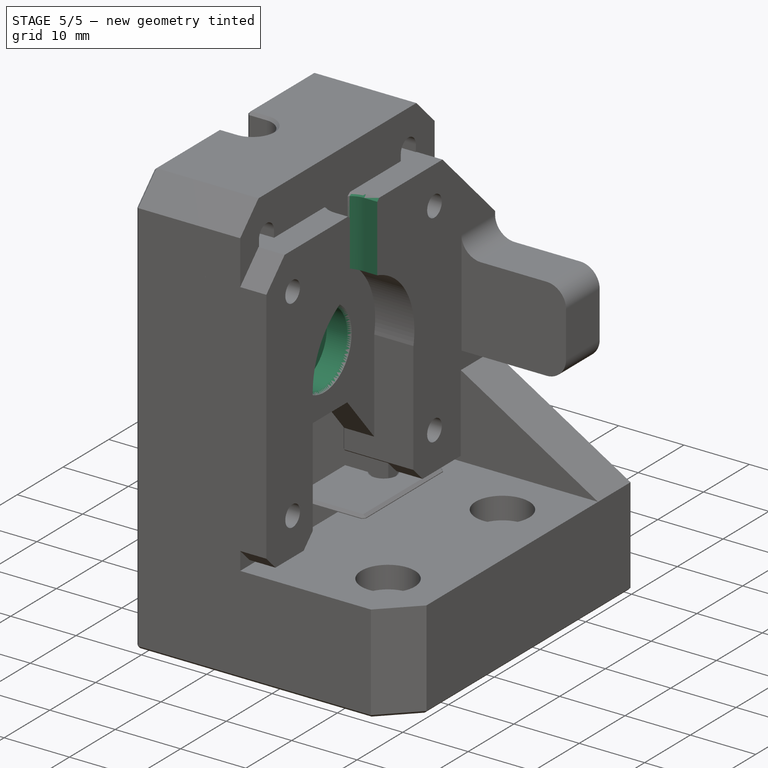
[diagram: stage 5 of 5 — iso view after this stage's code; geometry added in this stage tinted green]
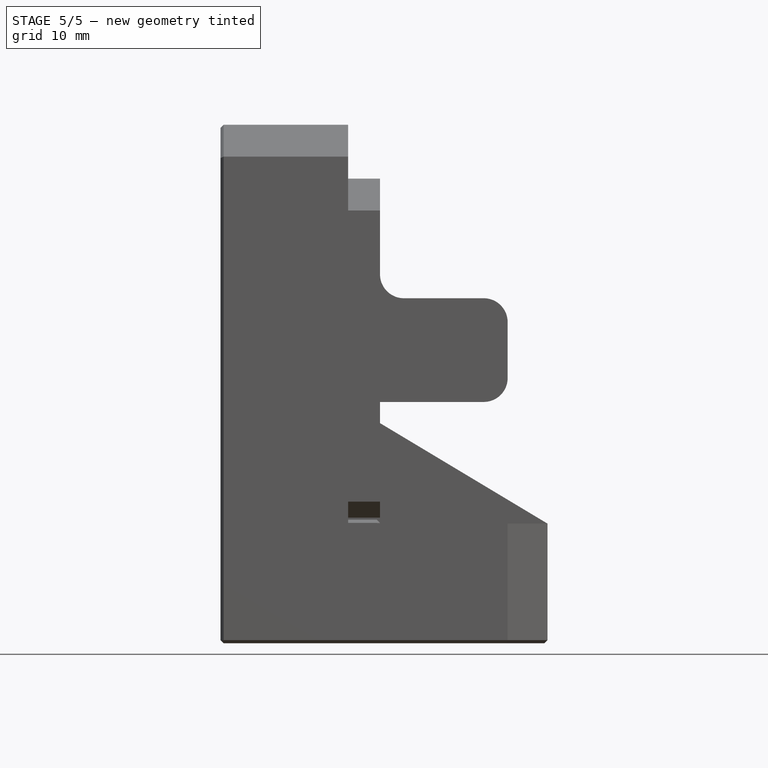
[diagram: stage 5 of 5 — front view after this stage's code; geometry added in this stage tinted green]
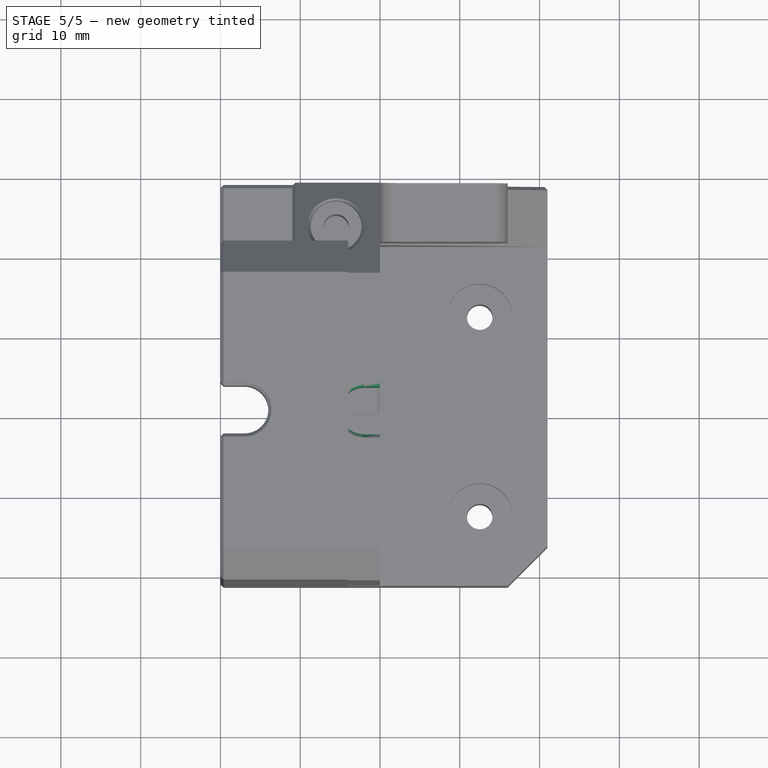
[diagram: stage 5 of 5 — top view after this stage's code; geometry added in this stage tinted green]
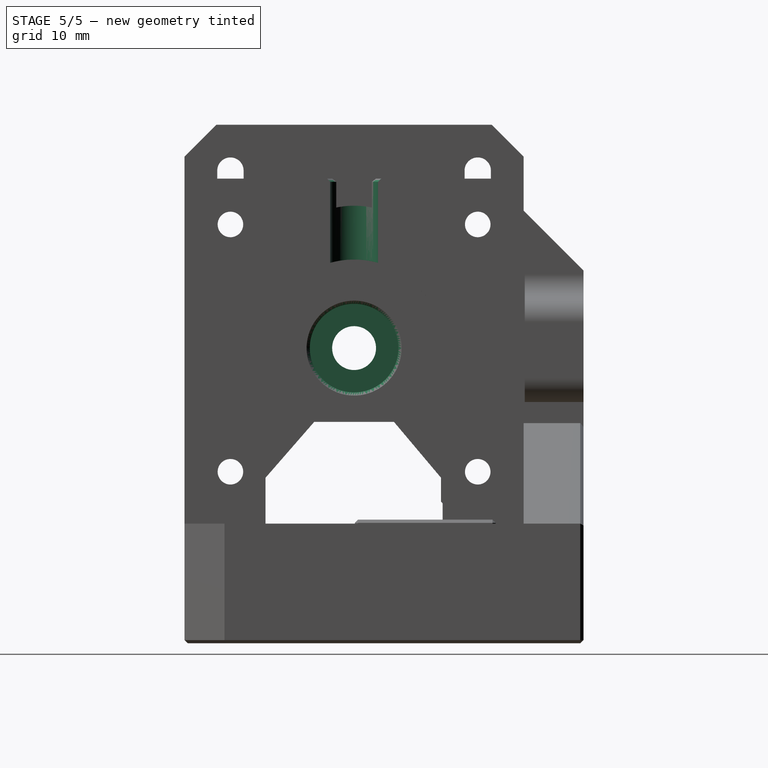
[diagram: stage 5 of 5 — right view after this stage's code; geometry added in this stage tinted green]
FEATURE [Sketcher::SketchObject] Sketch033
  ExternalGeometry = -> [Chamfer003012]
  FullyConstrained = true
  MapMode = 5
  Placement = pos=(-3.76e-14,1.92e-14,15.75) rot=(0.707107,0.707107,0;3.14159rad)
  Support = -> [Chamfer003012]
  sketch-geometry (1):
    g0: Circle CenterX=23.25 CenterY=-5.5 CenterZ=0 NormalX=0 NormalY=0 NormalZ=1 AngleXU=0 Radius=1.9
  constraints (2):
    c: Coincident(g0,g-3)
    c: Radius(g0) = 1.9
FEATURE [PartDesign::Pocket] Pocket017
  BaseFeature = -> Chamfer003012
  Length = 6
  Length2 = 100
  Placement = pos=(0,0,0) rot=(0.57735,0.57735,0.57735;2.0944rad)
  Profile = -> Sketch033
  Type = 0
FEATURE [PartDesign::Chamfer] Chamfer003013
  Angle = 45
  Base = -> Pocket017 [Edge46]
  BaseFeature = -> Pocket017
  ChamferType = 0
  FlipDirection = false
  Placement = pos=(0,0,0) rot=(0.57735,0.57735,0.57735;2.0944rad)
  Size = 1
  Size2 = 1
  SupportTransform = false
FEATURE [PartDesign::Chamfer] Chamfer003014
  Angle = 45
  Base = -> Chamfer003013 [Face23,Edge28,Edge64]
  BaseFeature = -> Chamfer003013
  ChamferType = 0
  FlipDirection = false
  Placement = pos=(0,0,0) rot=(0.57735,0.57735,0.57735;2.0944rad)
  Size = 0.4
  Size2 = 1
  SupportTransform = false
FEATURE [Sketcher::SketchObject] Sketch037
  FullyConstrained = true
  MapMode = 5
  Placement = pos=(-1.584e-13,7.76e-14,58.25) rot=(0,0,-1;1.5708rad)
  Support = -> [Chamfer003014]
  sketch-geometry (4):
    g0: ArcOfCircle CenterX=0 CenterY=-2 CenterZ=0 NormalX=0 NormalY=0 NormalZ=1 AngleXU=0 Radius=3 StartAngle=3.14159 EndAngle=6.28319
    g1: LineSegment StartX=-3 StartY=-2 StartZ=0 EndX=-3 EndY=0 EndZ=0
    g2: LineSegment StartX=-3 StartY=0 StartZ=0 EndX=3 EndY=0 EndZ=0
    g3: LineSegment StartX=3 StartY=0 StartZ=0 EndX=3 EndY=-2 EndZ=0
  constraints (12):
    c: PointOnObject(g0,g-2)
    c: Horizontal(g0,g0)
    c: Horizontal(g0,g0)
    c: Tangent(g0,g1) = 1.5708
    c: Coincident(g1,g2)
    c: PointOnObject(g2,g-1)
    c: Horizontal(g2)
    c: Coincident(g2,g3)
    c: Coincident(g3,g0)
    c: Vertical(g3)
    c: DistanceX(g1,g-1) = 3
    c: DistanceY(g0,g1) = 2
FEATURE [PartDesign::Pocket] Pocket020
  BaseFeature = -> Chamfer003014
  Length = 11
  Length2 = 100
  Placement = pos=(0,0,0) rot=(0.57735,0.57735,0.57735;2.0944rad)
  Profile = -> Sketch037
  Type = 0
FEATURE [PartDesign::Chamfer] Chamfer003016
  Angle = 45
  Base = -> Pocket020 [Edge68,Edge73,Edge72]
  BaseFeature = -> Pocket020
  ChamferType = 0
  FlipDirection = false
  Placement = pos=(0,0,0) rot=(0.57735,0.57735,0.57735;2.0944rad)
  Size = 0.4
  Size2 = 1
  SupportTransform = false
FEATURE [Sketcher::SketchObject] Sketch038
  ExternalGeometry = -> [Chamfer003016]
  FullyConstrained = true
  MapMode = 5
  Placement = pos=(-6,1.33e-14,-8e-15) rot=(0.57735,0.57735,0.57735;2.0944rad)
  Support = -> [Chamfer003016]
  sketch-geometry (1):
    g0: Circle CenterX=0 CenterY=37 CenterZ=0 NormalX=0 NormalY=0 NormalZ=1 AngleXU=0 Radius=5.55
  constraints (2):
    c: Coincident(g0,g-3)
    c: Radius(g0) = 5.55
FEATURE [PartDesign::Pocket] Pocket021
  BaseFeature = -> Chamfer003016
  Length = 3.5
  Length2 = 100
  Placement = pos=(0,0,0) rot=(0.57735,0.57735,0.57735;2.0944rad)
  Profile = -> Sketch038
  Type = 0
FEATURE [PartDesign::Chamfer] Chamfer003017
  Angle = 45
  Base = -> Pocket021 [Edge86]
  BaseFeature = -> Pocket021
  ChamferType = 0
  FlipDirection = false
  Placement = pos=(0,0,0) rot=(0.57735,0.57735,0.57735;2.0944rad)
  Size = 0.4
  Size2 = 1
  SupportTransform = false
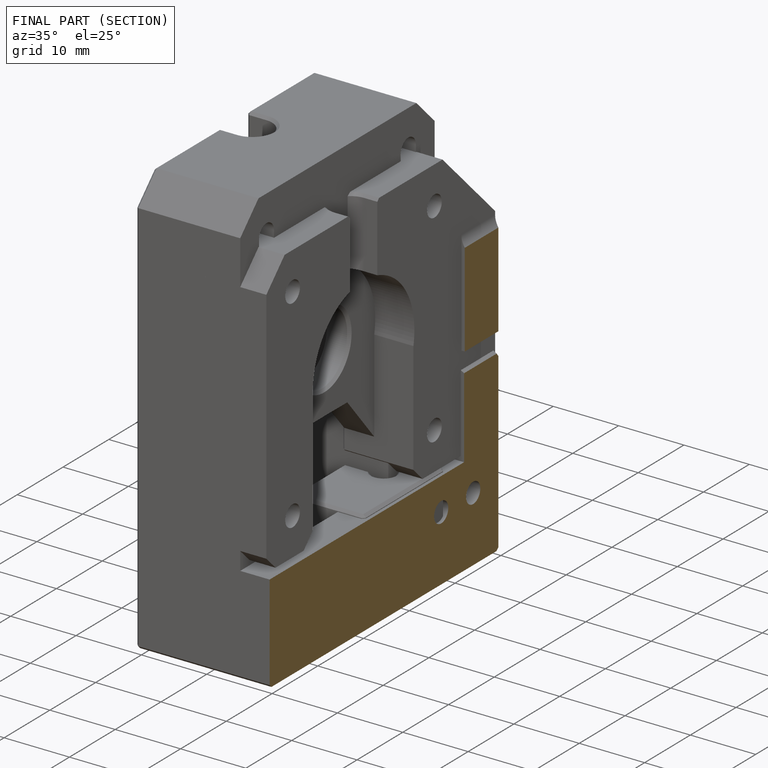
[diagram: finished part — half-section view (interior)]
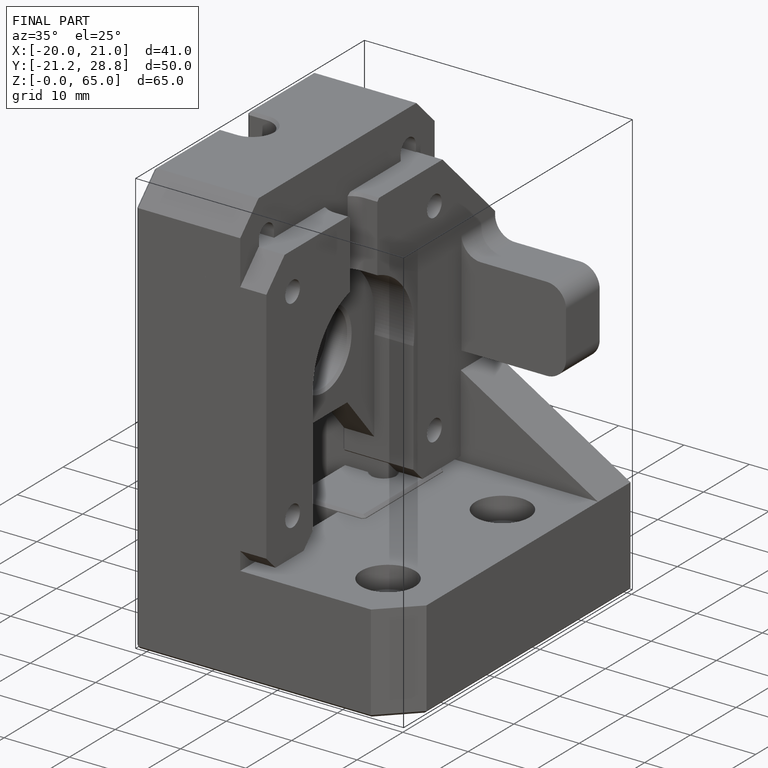
[diagram: finished part — iso view with bounding-box wireframe]
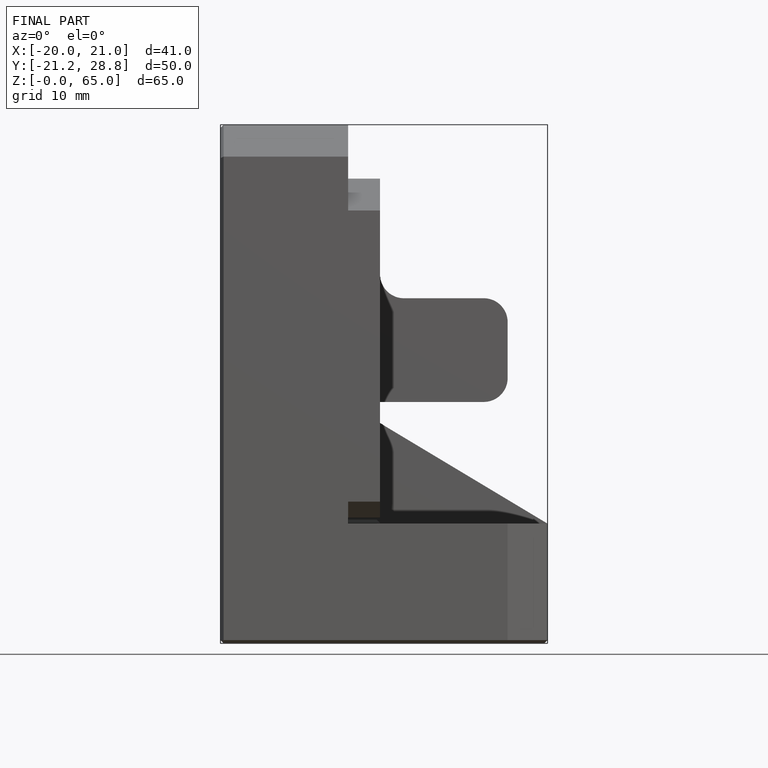
[diagram: finished part — front view with bounding-box wireframe]
